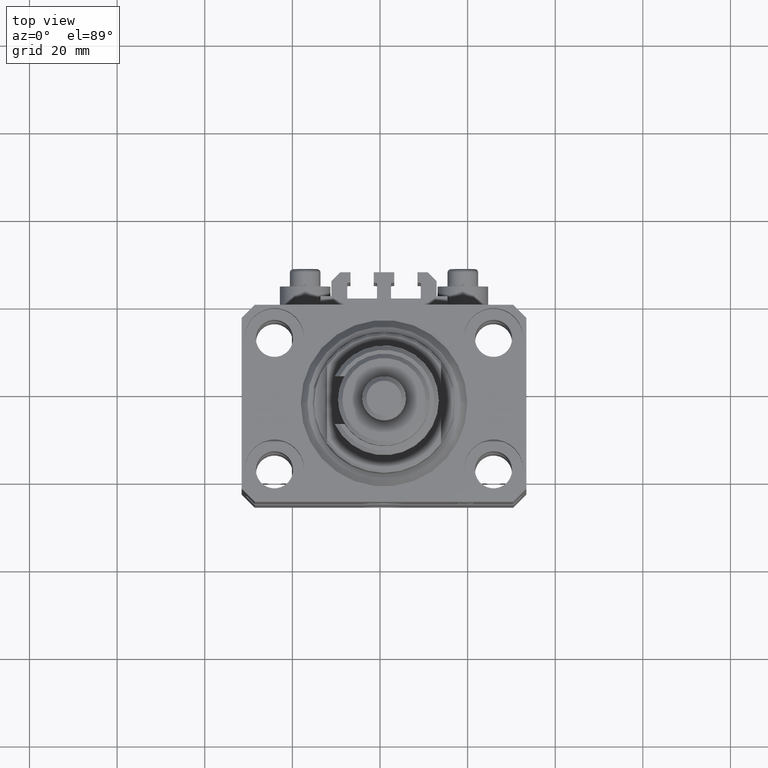
[diagram: clean part render]
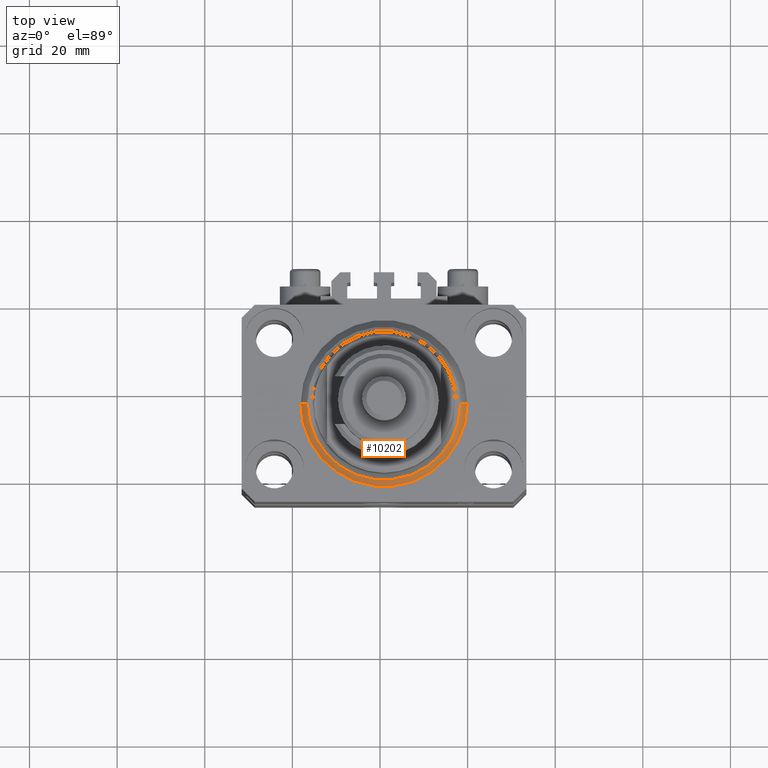
[diagram: same view with one face highlighted and labeled with its STEP entity id]
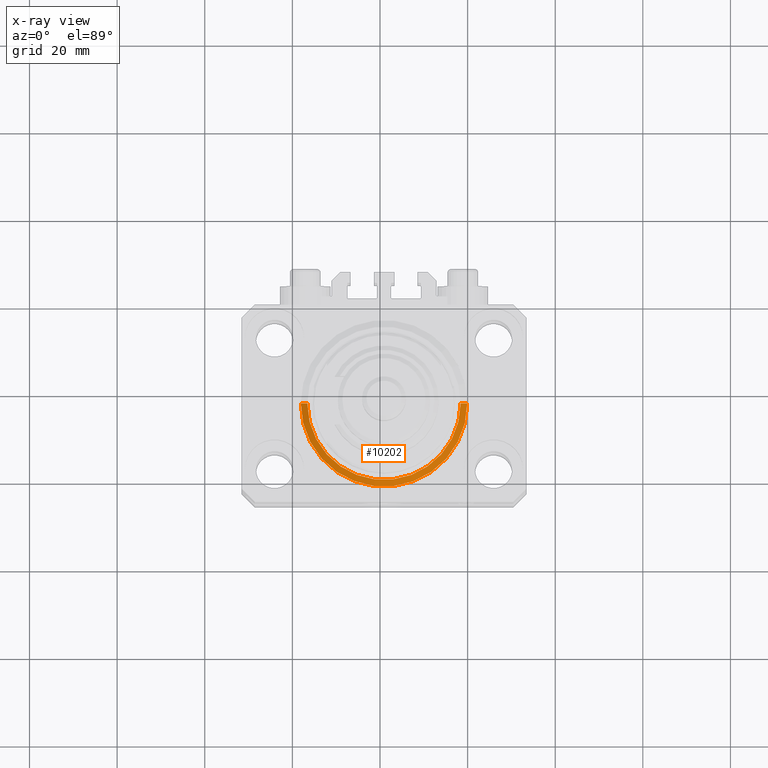
[diagram: x-ray of the same camera — body ghosted, the highlighted face saturated]
A machine part, top view. The second image highlights one B-rep face of the part: STEP entity #10202.
The next image is the same camera in x-ray: the body ghosted, the highlighted face saturated — about 0% of this face is hidden behind the body in this view.
In plain terms, the highlighted conical surface has half-angle 45 deg.
Its self-contained STEP definition (entity closure, byte-faithful):
#395 = EDGE_CURVE ( 'NONE', #24105, #38302, #10863, .T. ) ;
#2151 = VECTOR ( 'NONE', #44110, 1000.000000000000000 ) ;
#2489 = CARTESIAN_POINT ( 'NONE',  ( 0.000000000000000000, 0.000000000000000000, 1.500000000000004885 ) ) ;
#2544 = DIRECTION ( 'NONE',  ( 1.000000000000000000, 0.000000000000000000, 0.000000000000000000 ) ) ;
#3418 = AXIS2_PLACEMENT_3D ( 'NONE', #2489, #21463, #25485 ) ;
#6351 = EDGE_CURVE ( 'NONE', #40189, #49793, #46854, .T. ) ;
#6534 = AXIS2_PLACEMENT_3D ( 'NONE', #33852, #37159, #2544 ) ;
#8136 = ORIENTED_EDGE ( 'NONE', *, *, #6351, .F. ) ;
#9737 = CARTESIAN_POINT ( 'NONE',  ( -19.00000000000000000, 2.326828918379970970E-15, 1.500000000000004885 ) ) ;
#10202 = ADVANCED_FACE ( 'NONE', ( #32793 ), #17183, .T. ) ;
#10863 = CIRCLE ( 'NONE', #38304, 17.49999999999999289 ) ;
#14781 = ORIENTED_EDGE ( 'NONE', *, *, #21345, .T. ) ;
#15566 = CARTESIAN_POINT ( 'NONE',  ( 0.000000000000000000, 0.000000000000000000, 0.000000000000000000 ) ) ;
#17183 = CONICAL_SURFACE ( 'NONE', #3418, 19.00000000000000000, 0.7853981633974492782 ) ;
#20647 = ORIENTED_EDGE ( 'NONE', *, *, #44004, .F. ) ;
#21260 = CARTESIAN_POINT ( 'NONE',  ( 19.00000000000000000, 0.000000000000000000, 1.500000000000004885 ) ) ;
#21345 = EDGE_CURVE ( 'NONE', #24105, #49793, #40942, .T. ) ;
#21463 = DIRECTION ( 'NONE',  ( -0.000000000000000000, -0.000000000000000000, 1.000000000000000000 ) ) ;
#22943 = ORIENTED_EDGE ( 'NONE', *, *, #395, .F. ) ;
#24105 = VERTEX_POINT ( 'NONE', #40216 ) ;
#24909 = LINE ( 'NONE', #9737, #2151 ) ;
#25249 = EDGE_LOOP ( 'NONE', ( #20647, #22943, #14781, #8136 ) ) ;
#25485 = DIRECTION ( 'NONE',  ( 1.000000000000000000, 0.000000000000000000, 0.000000000000000000 ) ) ;
#27947 = VECTOR ( 'NONE', #47511, 1000.000000000000000 ) ;
#32793 = FACE_OUTER_BOUND ( 'NONE', #25249, .T. ) ;
#33852 = CARTESIAN_POINT ( 'NONE',  ( 0.000000000000000000, 0.000000000000000000, 1.500000000000004885 ) ) ;
#34538 = CARTESIAN_POINT ( 'NONE',  ( -19.00000000000000000, 0.000000000000000000, 1.500000000000004885 ) ) ;
#37159 = DIRECTION ( 'NONE',  ( -0.000000000000000000, -0.000000000000000000, 1.000000000000000000 ) ) ;
#38302 = VERTEX_POINT ( 'NONE', #48902 ) ;
#38304 = AXIS2_PLACEMENT_3D ( 'NONE', #15566, #49918, #46876 ) ;
#40189 = VERTEX_POINT ( 'NONE', #34538 ) ;
#40216 = CARTESIAN_POINT ( 'NONE',  ( 17.49999999999999289, 0.000000000000000000, 0.000000000000000000 ) ) ;
#40942 = LINE ( 'NONE', #21260, #27947 ) ;
#41722 = CARTESIAN_POINT ( 'NONE',  ( 19.00000000000000000, 2.326828918379970970E-15, 1.500000000000004885 ) ) ;
#44004 = EDGE_CURVE ( 'NONE', #38302, #40189, #24909, .T. ) ;
#44110 = DIRECTION ( 'NONE',  ( -0.7071067811865483499, 8.659560562354943952E-17, 0.7071067811865467956 ) ) ;
#46854 = CIRCLE ( 'NONE', #6534, 19.00000000000000000 ) ;
#46876 = DIRECTION ( 'NONE',  ( 1.000000000000000000, 0.000000000000000000, 0.000000000000000000 ) ) ;
#47511 = DIRECTION ( 'NONE',  ( 0.7071067811865483499, 0.000000000000000000, 0.7071067811865467956 ) ) ;
#48902 = CARTESIAN_POINT ( 'NONE',  ( -17.49999999999999289, 2.234980408443919215E-15, 0.000000000000000000 ) ) ;
#49793 = VERTEX_POINT ( 'NONE', #41722 ) ;
#49918 = DIRECTION ( 'NONE',  ( -0.000000000000000000, -0.000000000000000000, -1.000000000000000000 ) ) ;